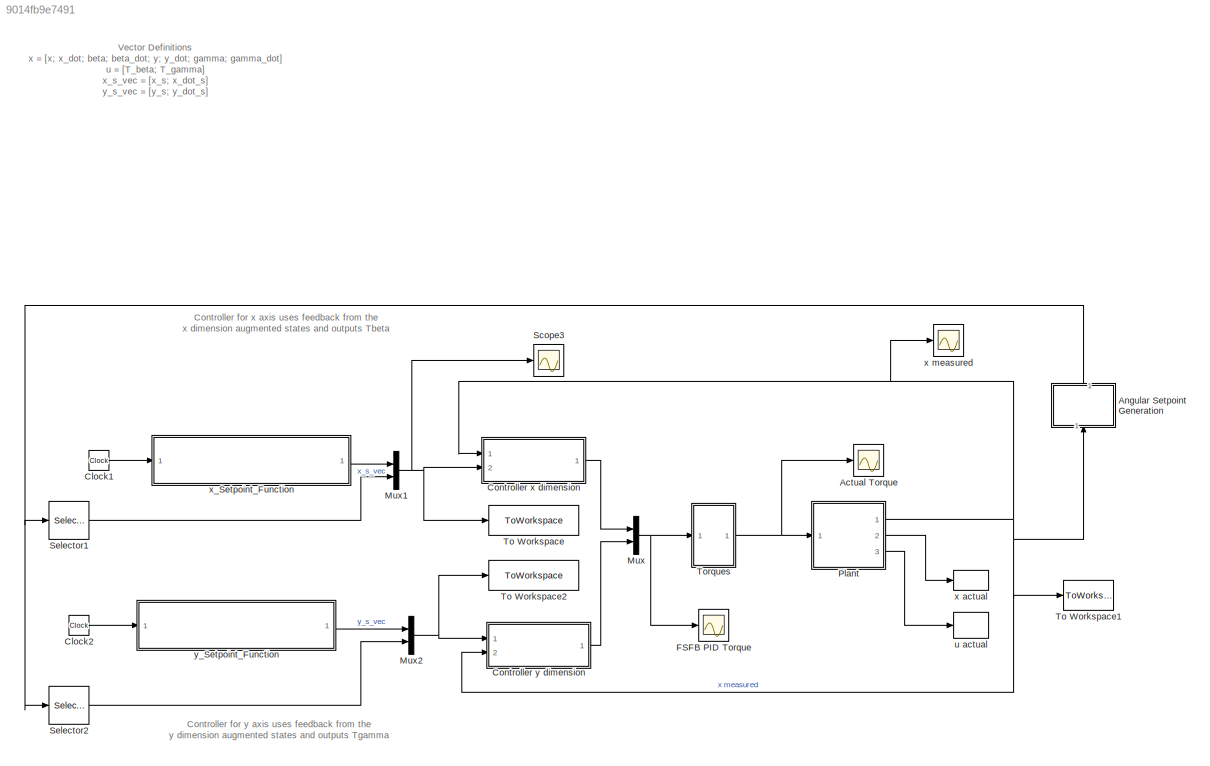
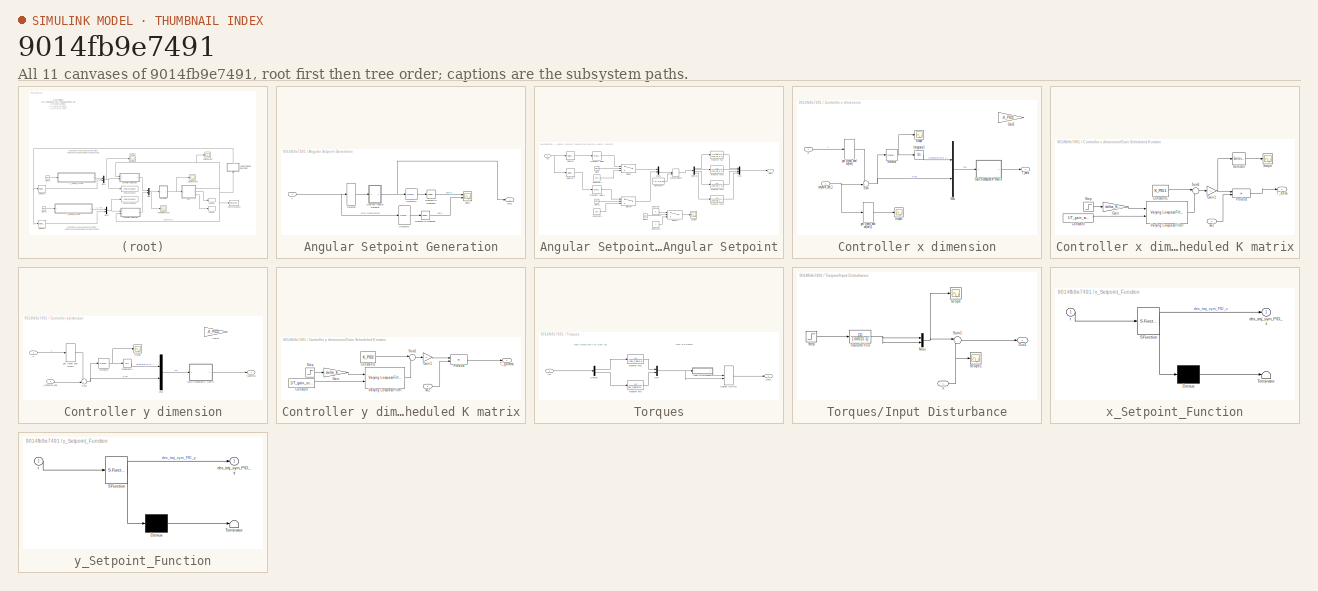
[diagram: thumbnail index - all 11 canvases of the model, root first then tree order]
MODEL slx_9014fb9e7491
KIND model
CONFIG AbsTol = auto
CONFIG EnableMultiTasking = off
CONFIG FixedStep = auto
CONFIG MaxStep = auto
CONFIG MinStep = auto
CONFIG RelTol = 1e-9
CONFIG SampleTimeConstraint = Unconstrained
CONFIG SolverName = VariableStepAuto
CONFIG StartTime = 0.0
CONFIG StopTime = tspan(2)
BLOCK [Scope] Actual Torque
  Floating = off
  NumInputPorts = 1
  Ports = [1]
  ScopeSpecificationString = Simulink.scopes.TimeScopeBlockCfg('CurrentConfiguration', extmgr.ConfigurationSet(extmgr.Configuration('Core','General UI',true),extmgr.Configuration('Core','Source UI',true),extmgr.Configuration('Sources','WiredSimulink',true,'DataLoggingVariableName','ScopeData3'),extmgr.Configuration('Visuals','Time Domain',true,'SerializedDisplays',{struct('MinYLimReal','-9.65148','MaxYLimReal','6.4331','YLabe...<+1432ch>
BLOCK [SubSystem] Angular Setpoint Generation
  NameLocation = right
  Ports = [1, 1]
  RequestExecContextInheritance = off
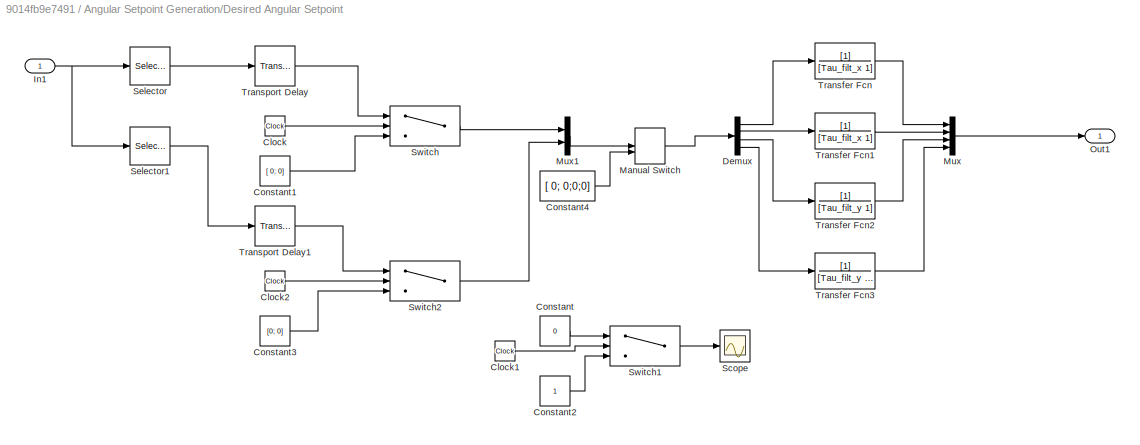
BLOCK [SubSystem] Angular Setpoint Generation/Desired Angular Setpoint
  Ports = [1, 1]
  RequestExecContextInheritance = off
BLOCK [Clock] Angular Setpoint Generation/Desired Angular Setpoint/Clock
BLOCK [Clock] Angular Setpoint Generation/Desired Angular Setpoint/Clock1
  Commented = on
BLOCK [Clock] Angular Setpoint Generation/Desired Angular Setpoint/Clock2
BLOCK [Constant] Angular Setpoint Generation/Desired Angular Setpoint/Constant
  Commented = on
  Value = 0
BLOCK [Constant] Angular Setpoint Generation/Desired Angular Setpoint/Constant1
  Value = [ 0; 0]
BLOCK [Constant] Angular Setpoint Generation/Desired Angular Setpoint/Constant2
  Commented = on
BLOCK [Constant] Angular Setpoint Generation/Desired Angular Setpoint/Constant3
  Value = [0; 0]
BLOCK [Constant] Angular Setpoint Generation/Desired Angular Setpoint/Constant4
  Value = [ 0; 0;0;0]
BLOCK [Demux] Angular Setpoint Generation/Desired Angular Setpoint/Demux
  Ports = [1, 4]
BLOCK [Inport] Angular Setpoint Generation/Desired Angular Setpoint/In1
BLOCK [ManualSwitch] Angular Setpoint Generation/Desired Angular Setpoint/Manual Switch
BLOCK [Mux] Angular Setpoint Generation/Desired Angular Setpoint/Mux
  DisplayOption = bar
  Ports = [4, 1]
BLOCK [Mux] Angular Setpoint Generation/Desired Angular Setpoint/Mux1
  DisplayOption = bar
  Inputs = 2
  Ports = [2, 1]
BLOCK [Outport] Angular Setpoint Generation/Desired Angular Setpoint/Out1
BLOCK [Scope] Angular Setpoint Generation/Desired Angular Setpoint/Scope
  Commented = on
  Floating = off
  NumInputPorts = 1
  Ports = [1]
  ScopeSpecificationString = Simulink.scopes.TimeScopeBlockCfg('CurrentConfiguration', extmgr.ConfigurationSet(extmgr.Configuration('Core','General UI',true),extmgr.Configuration('Core','Source UI',true),extmgr.Configuration('Sources','WiredSimulink',true,'DataLoggingVariableName','ScopeData4'),extmgr.Configuration('Visuals','Time Domain',true,'SerializedDisplays',{struct('MinYLimReal','-0.125','MaxYLimReal','1.125','YLabelRe...<+1383ch>
BLOCK [Selector] Angular Setpoint Generation/Desired Angular Setpoint/Selector
  IndexOptions = Index vector (dialog)
  Indices = [1 2]
  InputPortWidth = 4
  OutputSizes = 1
  Ports = [1, 1]
BLOCK [Selector] Angular Setpoint Generation/Desired Angular Setpoint/Selector1
  IndexOptions = Index vector (dialog)
  Indices = [3 4]
  InputPortWidth = 4
  OutputSizes = 1
  Ports = [1, 1]
BLOCK [Switch] Angular Setpoint Generation/Desired Angular Setpoint/Switch
  Criteria = u2 > Threshold
  InputSameDT = off
  SaturateOnIntegerOverflow = off
  Threshold = Tstart_x
BLOCK [Switch] Angular Setpoint Generation/Desired Angular Setpoint/Switch1
  Commented = on
  Criteria = u2 > Threshold
  InputSameDT = off
  SaturateOnIntegerOverflow = off
  Threshold = 3*T
BLOCK [Switch] Angular Setpoint Generation/Desired Angular Setpoint/Switch2
  Criteria = u2 > Threshold
  InputSameDT = off
  SaturateOnIntegerOverflow = off
  Threshold = Tstart_y
BLOCK [TransferFcn] Angular Setpoint Generation/Desired Angular Setpoint/Transfer Fcn
  Denominator = [Tau_filt_x 1]
BLOCK [TransferFcn] Angular Setpoint Generation/Desired Angular Setpoint/Transfer Fcn1
  Denominator = [Tau_filt_x 1]
BLOCK [TransferFcn] Angular Setpoint Generation/Desired Angular Setpoint/Transfer Fcn2
  Denominator = [Tau_filt_y 1]
BLOCK [TransferFcn] Angular Setpoint Generation/Desired Angular Setpoint/Transfer Fcn3
  Denominator = [Tau_filt_y  1]
BLOCK [TransportDelay] Angular Setpoint Generation/Desired Angular Setpoint/Transport Delay
  BufferSize = 100000
  DelayTime = T_x
  Ports = [1, 1]
BLOCK [TransportDelay] Angular Setpoint Generation/Desired Angular Setpoint/Transport Delay1
  BufferSize = 100000
  DelayTime = T_y
  Ports = [1, 1]
BLOCK [Outport] Angular Setpoint Generation/Out1
BLOCK [Reference] Angular Setpoint Generation/Radians to Degrees  REF=simulink_extras/Transformations/Radians
to Degrees
  Ports = [1, 1]
  SourceBlock = simulink_extras/Transformations/Radians\nto Degrees
  SourceProductBaseCode = SL
  SourceType = RadiansToDegrees
BLOCK [Reference] Angular Setpoint Generation/Radians to Degrees1  REF=simulink_extras/Transformations/Radians
to Degrees
  Ports = [1, 1]
  SourceBlock = simulink_extras/Transformations/Radians\nto Degrees
  SourceProductBaseCode = SL
  SourceType = RadiansToDegrees
BLOCK [Selector] Angular Setpoint Generation/Selector
  IndexOptions = Index vector (dialog)
  Indices = [3 4 7 8]
  InputPortWidth = 8
  OutputSizes = 1
  Ports = [1, 1]
BLOCK [Selector] Angular Setpoint Generation/Selector3
  IndexOptions = Index vector (dialog)
  Indices = [1]
  InputPortWidth = 4
  OutputSizes = 1
  Ports = [1, 1]
BLOCK [Selector] Angular Setpoint Generation/Selector4
  IndexOptions = Index vector (dialog)
  Indices = [3]
  InputPortWidth = 8
  OutputSizes = 1
  Ports = [1, 1]
BLOCK [Scope] Angular Setpoint Generation/beta
  Floating = off
  NumInputPorts = 2
  Ports = [2]
  ScopeSpecificationString = Simulink.scopes.TimeScopeBlockCfg('CurrentConfiguration', extmgr.ConfigurationSet(extmgr.Configuration('Core','General UI',true),extmgr.Configuration('Core','Source UI',true),extmgr.Configuration('Sources','WiredSimulink',true,'DataLoggingVariableName','ScopeData1'),extmgr.Configuration('Visuals','Time Domain',true,'SerializedDisplays',{struct('MinYLimReal','-6.10941','MaxYLimReal','7.31158','YLab...<+1442ch>
BLOCK [Inport] Angular Setpoint Generation/x
BLOCK [Clock] Clock1
BLOCK [Clock] Clock2
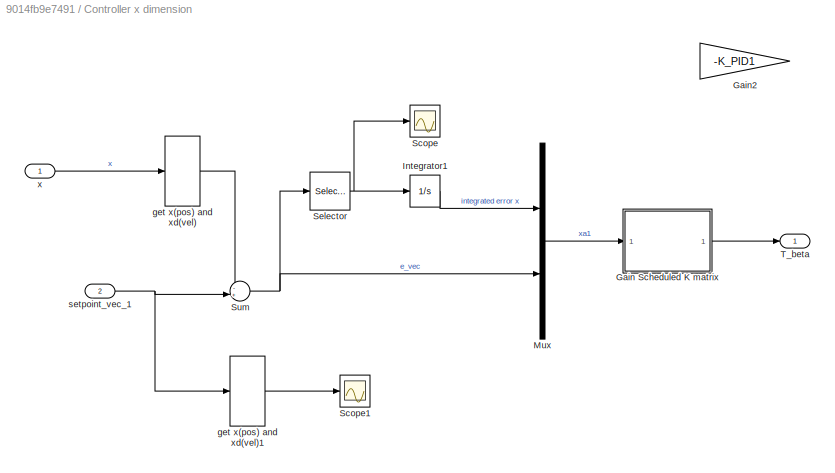
BLOCK [SubSystem] Controller x dimension
  Ports = [2, 1]
  RequestExecContextInheritance = off
BLOCK [SubSystem] Controller x dimension/Gain Scheduled K matrix
  Ports = [1, 1]
  RequestExecContextInheritance = off
BLOCK [Constant] Controller x dimension/Gain Scheduled K matrix/Constant
  Value = 1/T_gain_sched
BLOCK [Constant] Controller x dimension/Gain Scheduled K matrix/Constant1
  Value = K_PID1
BLOCK [Gain] Controller x dimension/Gain Scheduled K matrix/Gain
  Gain = delta_K_1
BLOCK [Gain] Controller x dimension/Gain Scheduled K matrix/Gain1
  Gain = -1
BLOCK [Product] Controller x dimension/Gain Scheduled K matrix/Product
  Multiplication = Matrix(*)
  Ports = [2, 1]
BLOCK [Scope] Controller x dimension/Gain Scheduled K matrix/Scope
  Floating = off
  NumInputPorts = 1
  Ports = [1]
  ScopeSpecificationString = Simulink.scopes.TimeScopeBlockCfg('CurrentConfiguration', extmgr.ConfigurationSet(extmgr.Configuration('Core','General UI',true),extmgr.Configuration('Core','Source UI',true),extmgr.Configuration('Sources','WiredSimulink',true,'DataLoggingVariableName','ScopeData1'),extmgr.Configuration('Visuals','Time Domain',true,'SerializedDisplays',{struct('MinYLimReal','-52.73578','MaxYLimReal','210.94315','Y...<+1466ch>
BLOCK [Selector] Controller x dimension/Gain Scheduled K matrix/Selector
  IndexOptions = Index vector (dialog)
  Indices = [2 3]
  InputPortWidth = 5
  OutputSizes = 1
  Ports = [1, 1]
BLOCK [Step] Controller x dimension/Gain Scheduled K matrix/Step
  SampleTime = 0
  Time = Tstart_x
BLOCK [Sum] Controller x dimension/Gain Scheduled K matrix/Sum1
  Inputs = |++
  Ports = [2, 1]
BLOCK [Outport] Controller x dimension/Gain Scheduled K matrix/T_beta
BLOCK [Reference] Controller x dimension/Gain Scheduled K matrix/Varying Lowpass Filter  REF=cstblocks/Linear Parameter Varying/Varying Lowpass Filter
  Ports = [2, 1]
  SourceBlock = cstblocks/Linear Parameter Varying/Varying Lowpass Filter
  SourceProductBaseCode = CT
  SourceType = Varying Lowpass Filter
BLOCK [Inport] Controller x dimension/Gain Scheduled K matrix/xa2
BLOCK [Gain] Controller x dimension/Gain2
  Commented = on
  Gain = -K_PID1
  Multiplication = Matrix(K*u)
BLOCK [Integrator] Controller x dimension/Integrator1
  Ports = [1, 1]
BLOCK [Mux] Controller x dimension/Mux
  DisplayOption = bar
  Inputs = 2
  Ports = [2, 1]
BLOCK [Scope] Controller x dimension/Scope
  Floating = off
  NumInputPorts = 1
  Ports = [1]
  ScopeSpecificationString = Simulink.scopes.TimeScopeBlockCfg('CurrentConfiguration', extmgr.ConfigurationSet(extmgr.Configuration('Core','General UI',true),extmgr.Configuration('Core','Source UI',true),extmgr.Configuration('Sources','WiredSimulink',true,'DataLoggingVariableName','ScopeData6'),extmgr.Configuration('Visuals','Time Domain',true,'SerializedDisplays',{struct('MinYLimReal','-0.03903','MaxYLimReal','0.03638','YLab...<+1441ch>
BLOCK [Scope] Controller x dimension/Scope1
  Floating = off
  NumInputPorts = 1
  Ports = [1]
  ScopeSpecificationString = Simulink.scopes.TimeScopeBlockCfg('CurrentConfiguration', extmgr.ConfigurationSet(extmgr.Configuration('Core','General UI',true),extmgr.Configuration('Core','Source UI',true),extmgr.Configuration('Sources','WiredSimulink',true,'DataLoggingVariableName','ScopeData1'),extmgr.Configuration('Visuals','Time Domain',true,'SerializedDisplays',{struct('MinYLimReal','-0.14413','MaxYLimReal','0.14389','YLab...<+1455ch>
BLOCK [Selector] Controller x dimension/Selector
  IndexOptions = Index vector (dialog)
  Indices = [1 ]
  InputPortWidth = 4
  OutputSizes = 1
  Ports = [1, 1]
BLOCK [Sum] Controller x dimension/Sum
  Inputs = -+|
  Ports = [2, 1]
BLOCK [Outport] Controller x dimension/T_beta
BLOCK [Selector] Controller x dimension/get x(pos) and xd(vel)
  IndexOptions = Index vector (dialog)
  Indices = [1:4]
  InputPortWidth = 8
  OutputSizes = 1
  Ports = [1, 1]
BLOCK [Selector] Controller x dimension/get x(pos) and xd(vel)1
  IndexOptions = Index vector (dialog)
  Indices = [3]
  InputPortWidth = 4
  OutputSizes = 1
  Ports = [1, 1]
BLOCK [Inport] Controller x dimension/setpoint_vec_1
  Port = 2
BLOCK [Inport] Controller x dimension/x
BLOCK [SubSystem] Controller y dimension
  NameLocation = top
  Ports = [2, 1]
  RequestExecContextInheritance = off
BLOCK [SubSystem] Controller y dimension/Gain Scheduled K matrix
  Ports = [1, 1]
  RequestExecContextInheritance = off
BLOCK [Constant] Controller y dimension/Gain Scheduled K matrix/Constant
  Value = 1/T_gain_sched
BLOCK [Constant] Controller y dimension/Gain Scheduled K matrix/Constant1
  Value = K_PID2
BLOCK [Gain] Controller y dimension/Gain Scheduled K matrix/Gain
  Gain = delta_K_2
BLOCK [Gain] Controller y dimension/Gain Scheduled K matrix/Gain1
  Gain = -1
BLOCK [Product] Controller y dimension/Gain Scheduled K matrix/Product
  Multiplication = Matrix(*)
  Ports = [2, 1]
BLOCK [Step] Controller y dimension/Gain Scheduled K matrix/Step
  SampleTime = 0
  Time = Tstart_x
BLOCK [Sum] Controller y dimension/Gain Scheduled K matrix/Sum1
  Inputs = |++
  Ports = [2, 1]
BLOCK [Outport] Controller y dimension/Gain Scheduled K matrix/T_gamma
BLOCK [Reference] Controller y dimension/Gain Scheduled K matrix/Varying Lowpass Filter  REF=cstblocks/Linear Parameter Varying/Varying Lowpass Filter
  Ports = [2, 1]
  SourceBlock = cstblocks/Linear Parameter Varying/Varying Lowpass Filter
  SourceProductBaseCode = CT
  SourceType = Varying Lowpass Filter
BLOCK [Inport] Controller y dimension/Gain Scheduled K matrix/xa2
BLOCK [Gain] Controller y dimension/Gain2
  Commented = on
  Gain = -K_PID2
  Multiplication = Matrix(K*u)
BLOCK [Integrator] Controller y dimension/Integrator1
  Ports = [1, 1]
BLOCK [Mux] Controller y dimension/Mux
  DisplayOption = bar
  Inputs = 2
  Ports = [2, 1]
BLOCK [Scope] Controller y dimension/Scope
  Floating = off
  NumInputPorts = 1
  Ports = [1]
  ScopeSpecificationString = Simulink.scopes.TimeScopeBlockCfg('CurrentConfiguration', extmgr.ConfigurationSet(extmgr.Configuration('Core','General UI',true),extmgr.Configuration('Core','Source UI',true),extmgr.Configuration('Sources','WiredSimulink',true,'DataLoggingVariableName','ScopeData2'),extmgr.Configuration('Visuals','Time Domain',true,'SerializedDisplays',{struct('MinYLimReal','-0.27544','MaxYLimReal','0.26905','YLab...<+1441ch>
BLOCK [Selector] Controller y dimension/Selector
  IndexOptions = Index vector (dialog)
  Indices = [1 ]
  InputPortWidth = 4
  OutputSizes = 1
  Ports = [1, 1]
BLOCK [Sum] Controller y dimension/Sum
  Inputs = -+|
  Ports = [2, 1]
BLOCK [Outport] Controller y dimension/T_gamma
BLOCK [Selector] Controller y dimension/get y(pos) and yd(vel)
  IndexOptions = Index vector (dialog)
  Indices = [5:8]
  InputPortWidth = 8
  OutputSizes = 1
  Ports = [1, 1]
BLOCK [Inport] Controller y dimension/x
  Port = 2
BLOCK [Inport] Controller y dimension/y_setpoint_vec
BLOCK [Scope] FSFB PID Torque
  Floating = off
  NumInputPorts = 1
  Ports = [1]
  ScopeSpecificationString = Simulink.scopes.TimeScopeBlockCfg('CurrentConfiguration', extmgr.ConfigurationSet(extmgr.Configuration('Core','General UI',true),extmgr.Configuration('Core','Source UI',true),extmgr.Configuration('Sources','WiredSimulink',true,'DataLoggingVariableName','ScopeData7'),extmgr.Configuration('Visuals','Time Domain',true,'SerializedDisplays',{struct('MinYLimReal','-3.73017','MaxYLimReal','3.74658','YLab...<+1480ch>
BLOCK [Mux] Mux
  DisplayOption = bar
  Inputs = 2
  Ports = [2, 1]
BLOCK [Mux] Mux1
  DisplayOption = bar
  Inputs = 2
  Ports = [2, 1]
BLOCK [Mux] Mux2
  DisplayOption = bar
  Inputs = 2
  Ports = [2, 1]
BLOCK [ModelReference] Plant
  ModelNameDialog = Plant
  ModelReferenceVersion = 1.46
  Ports = [1, 3]
BLOCK [Scope] Scope3
  Floating = off
  NumInputPorts = 1
  Ports = [1]
  ScopeSpecificationString = Simulink.scopes.TimeScopeBlockCfg('CurrentConfiguration', extmgr.ConfigurationSet(extmgr.Configuration('Core','General UI',true),extmgr.Configuration('Core','Source UI',true),extmgr.Configuration('Sources','WiredSimulink',true,'DataLoggingVariableName','ScopeData5'),extmgr.Configuration('Visuals','Time Domain',true,'SerializedDisplays',{struct('MinYLimReal','-0.44587','MaxYLimReal','0.4785','YLabe...<+1477ch>
BLOCK [Selector] Selector1
  IndexOptions = Index vector (dialog)
  Indices = [1 2]
  InputPortWidth = 4
  OutputSizes = 1
  Ports = [1, 1]
BLOCK [Selector] Selector2
  IndexOptions = Index vector (dialog)
  Indices = [3 4]
  InputPortWidth = 4
  OutputSizes = 1
  Ports = [1, 1]
BLOCK [ToWorkspace] To Workspace
  FixptAsFi = on
  MaxDataPoints = inf
  Ports = [1]
  SampleTime = -1
  VariableName = x_s_vec
BLOCK [ToWorkspace] To Workspace1
  FixptAsFi = on
  MaxDataPoints = inf
  Ports = [1]
  SampleTime = -1
  VariableName = x_meas
BLOCK [ToWorkspace] To Workspace2
  FixptAsFi = on
  MaxDataPoints = inf
  Ports = [1]
  SampleTime = -1
  VariableName = y_s_vec
BLOCK [SubSystem] Torques
  Ports = [1, 1]
  RequestExecContextInheritance = off
BLOCK [Demux] Torques/Demux
  Outputs = 2
  Ports = [1, 2]
BLOCK [Inport] Torques/In1
BLOCK [SubSystem] Torques/Input Disturbance
  Ports = [1, 1]
  RequestExecContextInheritance = off
BLOCK [Mux] Torques/Input Disturbance/Mux
  DisplayOption = bar
  Inputs = 2
  Ports = [2, 1]
BLOCK [Outport] Torques/Input Disturbance/Out1
BLOCK [Scope] Torques/Input Disturbance/Scope
  Floating = off
  NumInputPorts = 1
  Ports = [1]
  ScopeSpecificationString = Simulink.scopes.TimeScopeBlockCfg('CurrentConfiguration', extmgr.ConfigurationSet(extmgr.Configuration('Core','General UI',true),extmgr.Configuration('Core','Source UI',true),extmgr.Configuration('Sources','WiredSimulink',true,'DataLoggingVariableName','ScopeData1'),extmgr.Configuration('Visuals','Time Domain',true,'SerializedDisplays',{struct('MinYLimReal','-0.09375','MaxYLimReal','0.84375','YLab...<+1431ch>
BLOCK [Scope] Torques/Input Disturbance/Scope1
  Floating = off
  NumInputPorts = 1
  Ports = [1]
  ScopeSpecificationString = Simulink.scopes.TimeScopeBlockCfg('CurrentConfiguration', extmgr.ConfigurationSet(extmgr.Configuration('Core','General UI',true),extmgr.Configuration('Core','Source UI',true),extmgr.Configuration('Sources','WiredSimulink',true,'DataLoggingVariableName','ScopeData2'),extmgr.Configuration('Visuals','Time Domain',true,'SerializedDisplays',{struct('MinYLimReal','-1.875','MaxYLimReal','1.875','YLabelRe...<+1400ch>
BLOCK [Step] Torques/Input Disturbance/Step
  After = Tmax/2
  SampleTime = 0
  Time = 10
BLOCK [Sum] Torques/Input Disturbance/Sum1
  Inputs = |++
  Ports = [2, 1]
BLOCK [TransferFcn] Torques/Input Disturbance/Transfer Fcn
  Denominator = [.00015 1]
BLOCK [Inport] Torques/Input Disturbance/u
BLOCK [ManualSwitch] Torques/Manual Switch
  CurrentSetting = 0
BLOCK [Mux] Torques/Mux
  DisplayOption = bar
  Inputs = 2
  Ports = [2, 1]
BLOCK [Outport] Torques/Out2
BLOCK [TransferFcn] Torques/Transfer Fcn
  Denominator = [Tau_T_gamma 1]
BLOCK [TransferFcn] Torques/Transfer Fcn1
  Denominator = [Tau_T_beta 1]
BLOCK [ToWorkspace] u actual
  FixptAsFi = on
  MaxDataPoints = inf
  Ports = [1]
  SampleTime = -1
  VariableName = u
BLOCK [ToWorkspace] x actual
  FixptAsFi = on
  MaxDataPoints = inf
  Ports = [1]
  SampleTime = -1
  VariableName = x
BLOCK [Scope] x measured
  Floating = off
  NumInputPorts = 1
  Ports = [1]
  ScopeSpecificationString = Simulink.scopes.TimeScopeBlockCfg('CurrentConfiguration', extmgr.ConfigurationSet(extmgr.Configuration('Core','General UI',true),extmgr.Configuration('Core','Source UI',true),extmgr.Configuration('Sources','WiredSimulink',true,'DataLoggingVariableName','ScopeData1'),extmgr.Configuration('Visuals','Time Domain',true,'SerializedDisplays',{struct('MinYLimReal','-0.99141','MaxYLimReal','0.55599','YLab...<+1550ch>
BLOCK [SubSystem] x_Setpoint_Function
  ErrorFcn = Stateflow.Translate.translate
  PermitHierarchicalResolution = ExplicitOnly
  Ports = [1, 1]
  RequestExecContextInheritance = off
  SFBlockType = MATLAB Function
  TreatAsAtomicUnit = on
BLOCK [Demux] x_Setpoint_Function/ Demux 
  Outputs = 1
  Ports = [1, 1]
BLOCK [S-Function] x_Setpoint_Function/ SFunction 
  EnableBusSupport = on
  FunctionName = sf_sfun
  PortCounts = [1 2]
  Ports = [1, 2]
  SFcnIsStateOwnerBlock = off
  SFunctionDeploymentMode = off
  Tag = Stateflow S-Function 6
BLOCK [Terminator] x_Setpoint_Function/ Terminator 
BLOCK [Outport] x_Setpoint_Function/des_traj_sym_PID_x
BLOCK [Inport] x_Setpoint_Function/t
BLOCK [SubSystem] y_Setpoint_Function
  ErrorFcn = Stateflow.Translate.translate
  PermitHierarchicalResolution = ExplicitOnly
  Ports = [1, 1]
  RequestExecContextInheritance = off
  SFBlockType = MATLAB Function
  TreatAsAtomicUnit = on
BLOCK [Demux] y_Setpoint_Function/ Demux 
  Outputs = 1
  Ports = [1, 1]
BLOCK [S-Function] y_Setpoint_Function/ SFunction 
  EnableBusSupport = on
  FunctionName = sf_sfun
  PortCounts = [1 2]
  Ports = [1, 2]
  SFcnIsStateOwnerBlock = off
  SFunctionDeploymentMode = off
  Tag = Stateflow S-Function 7
BLOCK [Terminator] y_Setpoint_Function/ Terminator 
BLOCK [Outport] y_Setpoint_Function/des_traj_sym_PID_y
BLOCK [Inport] y_Setpoint_Function/t
ANNOTATION (root): Vector Definitions x = [x; x_dot; beta; beta_dot; y; y_dot; gamma; gamma_dot] u = [T_beta; T_gamma] x_s_vec = [x_s; x_dot_s] y_s_vec = [y_s; y_dot_s]
ANNOTATION (root): Controller for x axis uses feedback from the x dimension augmented states and outputs Tbeta
ANNOTATION (root): Controller for y axis uses feedback from the y dimension augmented states and outputs Tgamma
ANNOTATION Torques: Input disturbance
ANNOTATION Torques: Input torques has first order lag
LINE Angular Setpoint Generation/Desired Angular Setpoint/Clock1:1 -> Angular Setpoint Generation/Desired Angular Setpoint/Switch1:2
LINE Angular Setpoint Generation/Desired Angular Setpoint/Clock2:1 -> Angular Setpoint Generation/Desired Angular Setpoint/Switch2:2
LINE Angular Setpoint Generation/Desired Angular Setpoint/Clock:1 -> Angular Setpoint Generation/Desired Angular Setpoint/Switch:2
LINE Angular Setpoint Generation/Desired Angular Setpoint/Constant1:1 -> Angular Setpoint Generation/Desired Angular Setpoint/Switch:3
LINE Angular Setpoint Generation/Desired Angular Setpoint/Constant2:1 -> Angular Setpoint Generation/Desired Angular Setpoint/Switch1:3
LINE Angular Setpoint Generation/Desired Angular Setpoint/Constant3:1 -> Angular Setpoint Generation/Desired Angular Setpoint/Switch2:3
LINE Angular Setpoint Generation/Desired Angular Setpoint/Constant4:1 -> Angular Setpoint Generation/Desired Angular Setpoint/Manual Switch:2
LINE Angular Setpoint Generation/Desired Angular Setpoint/Constant:1 -> Angular Setpoint Generation/Desired Angular Setpoint/Switch1:1
LINE Angular Setpoint Generation/Desired Angular Setpoint/Demux:1 -> Angular Setpoint Generation/Desired Angular Setpoint/Transfer Fcn:1
LINE Angular Setpoint Generation/Desired Angular Setpoint/Demux:2 -> Angular Setpoint Generation/Desired Angular Setpoint/Transfer Fcn1:1
LINE Angular Setpoint Generation/Desired Angular Setpoint/Demux:3 -> Angular Setpoint Generation/Desired Angular Setpoint/Transfer Fcn2:1
LINE Angular Setpoint Generation/Desired Angular Setpoint/Demux:4 -> Angular Setpoint Generation/Desired Angular Setpoint/Transfer Fcn3:1
NET Angular Setpoint Generation/Desired Angular Setpoint/In1:1 -> Angular Setpoint Generation/Desired Angular Setpoint/Selector1:1, Angular Setpoint Generation/Desired Angular Setpoint/Selector:1
LINE Angular Setpoint Generation/Desired Angular Setpoint/Manual Switch:1 -> Angular Setpoint Generation/Desired Angular Setpoint/Demux:1
LINE Angular Setpoint Generation/Desired Angular Setpoint/Mux1:1 -> Angular Setpoint Generation/Desired Angular Setpoint/Manual Switch:1
LINE Angular Setpoint Generation/Desired Angular Setpoint/Mux:1 -> Angular Setpoint Generation/Desired Angular Setpoint/Out1:1
LINE Angular Setpoint Generation/Desired Angular Setpoint/Selector1:1 -> Angular Setpoint Generation/Desired Angular Setpoint/Transport Delay1:1
LINE Angular Setpoint Generation/Desired Angular Setpoint/Selector:1 -> Angular Setpoint Generation/Desired Angular Setpoint/Transport Delay:1
LINE Angular Setpoint Generation/Desired Angular Setpoint/Switch1:1 -> Angular Setpoint Generation/Desired Angular Setpoint/Scope:1
LINE Angular Setpoint Generation/Desired Angular Setpoint/Switch2:1 -> Angular Setpoint Generation/Desired Angular Setpoint/Mux1:2
LINE Angular Setpoint Generation/Desired Angular Setpoint/Switch:1 -> Angular Setpoint Generation/Desired Angular Setpoint/Mux1:1
LINE Angular Setpoint Generation/Desired Angular Setpoint/Transfer Fcn1:1 -> Angular Setpoint Generation/Desired Angular Setpoint/Mux:2
LINE Angular Setpoint Generation/Desired Angular Setpoint/Transfer Fcn2:1 -> Angular Setpoint Generation/Desired Angular Setpoint/Mux:3
LINE Angular Setpoint Generation/Desired Angular Setpoint/Transfer Fcn3:1 -> Angular Setpoint Generation/Desired Angular Setpoint/Mux:4
LINE Angular Setpoint Generation/Desired Angular Setpoint/Transfer Fcn:1 -> Angular Setpoint Generation/Desired Angular Setpoint/Mux:1
LINE Angular Setpoint Generation/Desired Angular Setpoint/Transport Delay1:1 -> Angular Setpoint Generation/Desired Angular Setpoint/Switch2:1
LINE Angular Setpoint Generation/Desired Angular Setpoint/Transport Delay:1 -> Angular Setpoint Generation/Desired Angular Setpoint/Switch:1
NET Angular Setpoint Generation/Desired Angular Setpoint:1 -> Angular Setpoint Generation/Out1:1, Angular Setpoint Generation/Selector3:1
LINE Angular Setpoint Generation/Radians to Degrees1:1 -> Angular Setpoint Generation/beta:1
LINE Angular Setpoint Generation/Radians to Degrees:1 -> Angular Setpoint Generation/beta:2
LINE Angular Setpoint Generation/Selector3:1 -> Angular Setpoint Generation/Radians to Degrees1:1
LINE Angular Setpoint Generation/Selector4:1 -> Angular Setpoint Generation/Radians to Degrees:1
LINE Angular Setpoint Generation/Selector:1 -> Angular Setpoint Generation/Desired Angular Setpoint:1
NET Angular Setpoint Generation/x:1 -> Angular Setpoint Generation/Selector4:1, Angular Setpoint Generation/Selector:1
NET Angular Setpoint Generation:1 -> Selector1:1, Selector2:1
LINE Clock1:1 -> x_Setpoint_Function:1
LINE Clock2:1 -> y_Setpoint_Function:1
LINE Controller x dimension/Gain Scheduled K matrix/Constant1:1 -> Controller x dimension/Gain Scheduled K matrix/Sum1:1
LINE Controller x dimension/Gain Scheduled K matrix/Constant:1 -> Controller x dimension/Gain Scheduled K matrix/Varying Lowpass Filter:2
NET Controller x dimension/Gain Scheduled K matrix/Gain1:1 -> Controller x dimension/Gain Scheduled K matrix/Product:1, Controller x dimension/Gain Scheduled K matrix/Selector:1
LINE Controller x dimension/Gain Scheduled K matrix/Gain:1 -> Controller x dimension/Gain Scheduled K matrix/Varying Lowpass Filter:1
LINE Controller x dimension/Gain Scheduled K matrix/Product:1 -> Controller x dimension/Gain Scheduled K matrix/T_beta:1
LINE Controller x dimension/Gain Scheduled K matrix/Selector:1 -> Controller x dimension/Gain Scheduled K matrix/Scope:1
LINE Controller x dimension/Gain Scheduled K matrix/Step:1 -> Controller x dimension/Gain Scheduled K matrix/Gain:1
LINE Controller x dimension/Gain Scheduled K matrix/Sum1:1 -> Controller x dimension/Gain Scheduled K matrix/Gain1:1
LINE Controller x dimension/Gain Scheduled K matrix/Varying Lowpass Filter:1 -> Controller x dimension/Gain Scheduled K matrix/Sum1:2
LINE Controller x dimension/Gain Scheduled K matrix/xa2:1 -> Controller x dimension/Gain Scheduled K matrix/Product:2
LINE Controller x dimension/Gain Scheduled K matrix:1 -> Controller x dimension/T_beta:1
LINE Controller x dimension/Integrator1:1 -> Controller x dimension/Mux:1
LINE Controller x dimension/Mux:1 -> Controller x dimension/Gain Scheduled K matrix:1
NET Controller x dimension/Selector:1 -> Controller x dimension/Integrator1:1, Controller x dimension/Scope:1
NET Controller x dimension/Sum:1 -> Controller x dimension/Mux:2, Controller x dimension/Selector:1
LINE Controller x dimension/get x(pos) and xd(vel)1:1 -> Controller x dimension/Scope1:1
LINE Controller x dimension/get x(pos) and xd(vel):1 -> Controller x dimension/Sum:1
NET Controller x dimension/setpoint_vec_1:1 -> Controller x dimension/Sum:2, Controller x dimension/get x(pos) and xd(vel)1:1
LINE Controller x dimension/x:1 -> Controller x dimension/get x(pos) and xd(vel):1
LINE Controller x dimension:1 -> Mux:1
LINE Controller y dimension/Gain Scheduled K matrix/Constant1:1 -> Controller y dimension/Gain Scheduled K matrix/Sum1:1
LINE Controller y dimension/Gain Scheduled K matrix/Constant:1 -> Controller y dimension/Gain Scheduled K matrix/Varying Lowpass Filter:2
LINE Controller y dimension/Gain Scheduled K matrix/Gain1:1 -> Controller y dimension/Gain Scheduled K matrix/Product:1
LINE Controller y dimension/Gain Scheduled K matrix/Gain:1 -> Controller y dimension/Gain Scheduled K matrix/Varying Lowpass Filter:1
LINE Controller y dimension/Gain Scheduled K matrix/Product:1 -> Controller y dimension/Gain Scheduled K matrix/T_gamma:1
LINE Controller y dimension/Gain Scheduled K matrix/Step:1 -> Controller y dimension/Gain Scheduled K matrix/Gain:1
LINE Controller y dimension/Gain Scheduled K matrix/Sum1:1 -> Controller y dimension/Gain Scheduled K matrix/Gain1:1
LINE Controller y dimension/Gain Scheduled K matrix/Varying Lowpass Filter:1 -> Controller y dimension/Gain Scheduled K matrix/Sum1:2
LINE Controller y dimension/Gain Scheduled K matrix/xa2:1 -> Controller y dimension/Gain Scheduled K matrix/Product:2
LINE Controller y dimension/Gain Scheduled K matrix:1 -> Controller y dimension/T_gamma:1
LINE Controller y dimension/Integrator1:1 -> Controller y dimension/Mux:1
LINE Controller y dimension/Mux:1 -> Controller y dimension/Gain Scheduled K matrix:1
NET Controller y dimension/Selector:1 -> Controller y dimension/Integrator1:1, Controller y dimension/Scope:1
NET Controller y dimension/Sum:1 -> Controller y dimension/Mux:2, Controller y dimension/Selector:1
LINE Controller y dimension/get y(pos) and yd(vel):1 -> Controller y dimension/Sum:1
LINE Controller y dimension/x:1 -> Controller y dimension/get y(pos) and yd(vel):1
LINE Controller y dimension/y_setpoint_vec:1 -> Controller y dimension/Sum:2
LINE Controller y dimension:1 -> Mux:2
NET Mux1:1 -> Controller x dimension:2, Scope3:1, To Workspace:1
NET Mux2:1 -> Controller y dimension:1, To Workspace2:1
NET Mux:1 -> FSFB PID Torque:1, Torques:1
NET Plant:1 -> Angular Setpoint Generation:1, Controller x dimension:1, Controller y dimension:2, To Workspace1:1, x measured:1
LINE Plant:2 -> x actual:1
LINE Plant:3 -> u actual:1
LINE Selector1:1 -> Mux1:2
LINE Selector2:1 -> Mux2:2
LINE Torques/Demux:1 -> Torques/Transfer Fcn1:1
LINE Torques/Demux:2 -> Torques/Transfer Fcn:1
LINE Torques/In1:1 -> Torques/Demux:1
NET Torques/Input Disturbance/Mux:1 -> Torques/Input Disturbance/Scope:1, Torques/Input Disturbance/Sum1:1
LINE Torques/Input Disturbance/Step:1 -> Torques/Input Disturbance/Transfer Fcn:1
LINE Torques/Input Disturbance/Sum1:1 -> Torques/Input Disturbance/Out1:1
NET Torques/Input Disturbance/Transfer Fcn:1 -> Torques/Input Disturbance/Mux:1, Torques/Input Disturbance/Mux:2
NET Torques/Input Disturbance/u:1 -> Torques/Input Disturbance/Scope1:1, Torques/Input Disturbance/Sum1:2
LINE Torques/Input Disturbance:1 -> Torques/Manual Switch:1
LINE Torques/Manual Switch:1 -> Torques/Out2:1
NET Torques/Mux:1 -> Torques/Input Disturbance:1, Torques/Manual Switch:2
LINE Torques/Transfer Fcn1:1 -> Torques/Mux:1
LINE Torques/Transfer Fcn:1 -> Torques/Mux:2
NET Torques:1 -> Actual Torque:1, Plant:1
LINE x_Setpoint_Function:1 -> Mux1:1
LINE y_Setpoint_Function:1 -> Mux2:1
note: NET lines group one-source signal fan-out (src -> all destinations, sorted); 1:1 wires keep LINE
CHART y_Setpoint_Function states=1 transitions=1
  STATE_LABEL 'eML_blk_kernel()'
  STATE_LABEL 'SCRIPT:\nfunction des_traj_sym_PID_y = y_setpoint(t)\n%#codegen\n\n%    This function was generated by the Symbolic Math Toolbox version 9.0.\n%    04-Feb-2022 16:45:39\n\nt2 = pi./2.0;\nt3 = t./2.0;\nt4 = t.*pi.*(2.0./3.0);\nt5 = -t3;\nt8 = t2+t4;\nt6 = exp(t5);\nt9 = sin(t8);\nt7 = t6-1.0;\ndes_traj_sym_PID_y = [t7.*t9.*(-1.0./5.0);(t6.*t9)./1.0e+1-t7.*pi.*cos(t8).*(2.0./1.5e+1)];\n'
CHART x_Setpoint_Function states=1 transitions=1
  STATE_LABEL 'eML_blk_kernel()'
  STATE_LABEL 'SCRIPT:\nfunction des_traj_sym_PID_x = x_setpoint(t)\n%#codegen\n\n%    This function was generated by the Symbolic Math Toolbox version 9.0.\n%    04-Feb-2022 16:45:39\n\nt2 = t./2.0;\nt3 = t.*pi.*(2.0./3.0);\nt4 = -t2;\nt6 = sin(t3);\nt5 = exp(t4);\nt7 = t5-1.0;\ndes_traj_sym_PID_x = [t6.*t7.*(-1.0./5.0);(t5.*t6)./1.0e+1-t7.*pi.*cos(t3).*(2.0./1.5e+1)];\n'
CHART  states=0 transitions=0
CHART  states=0 transitions=0
